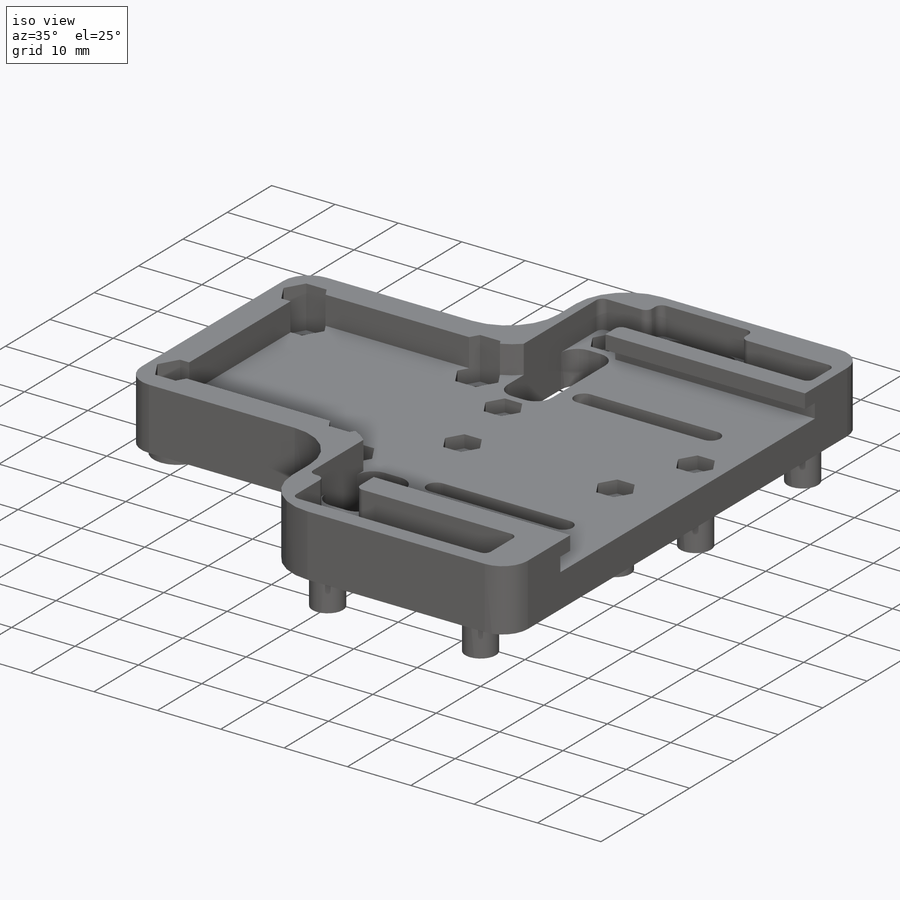
[diagram: iso view]
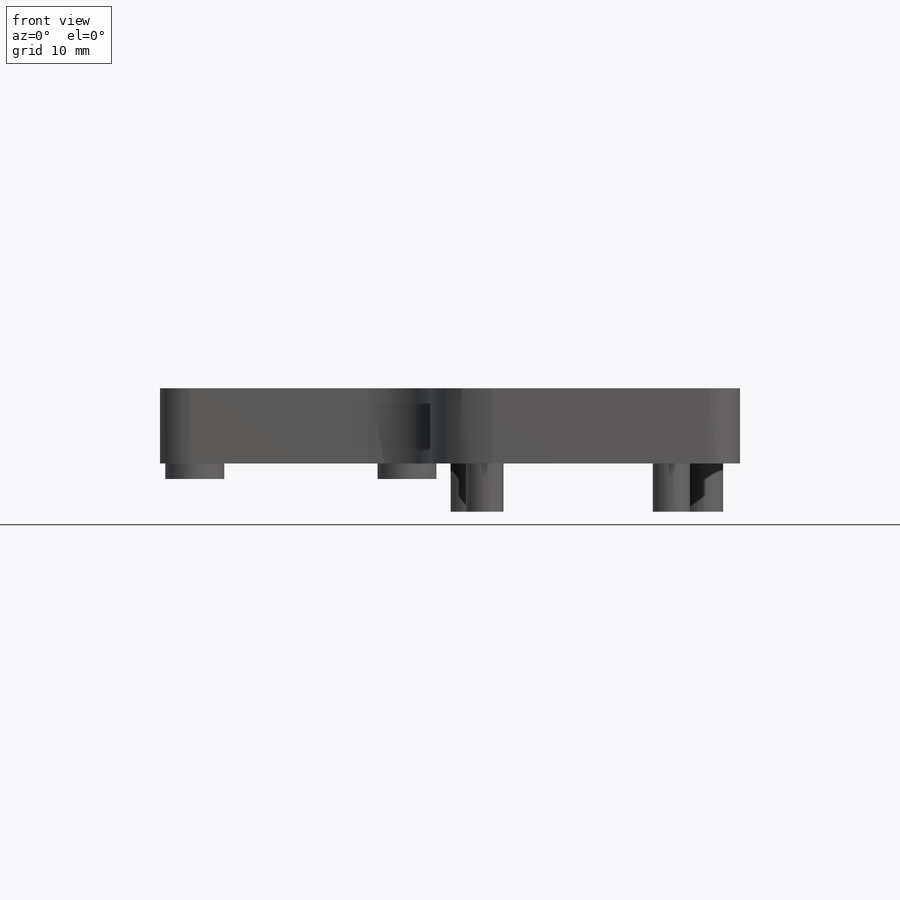
[diagram: front view]
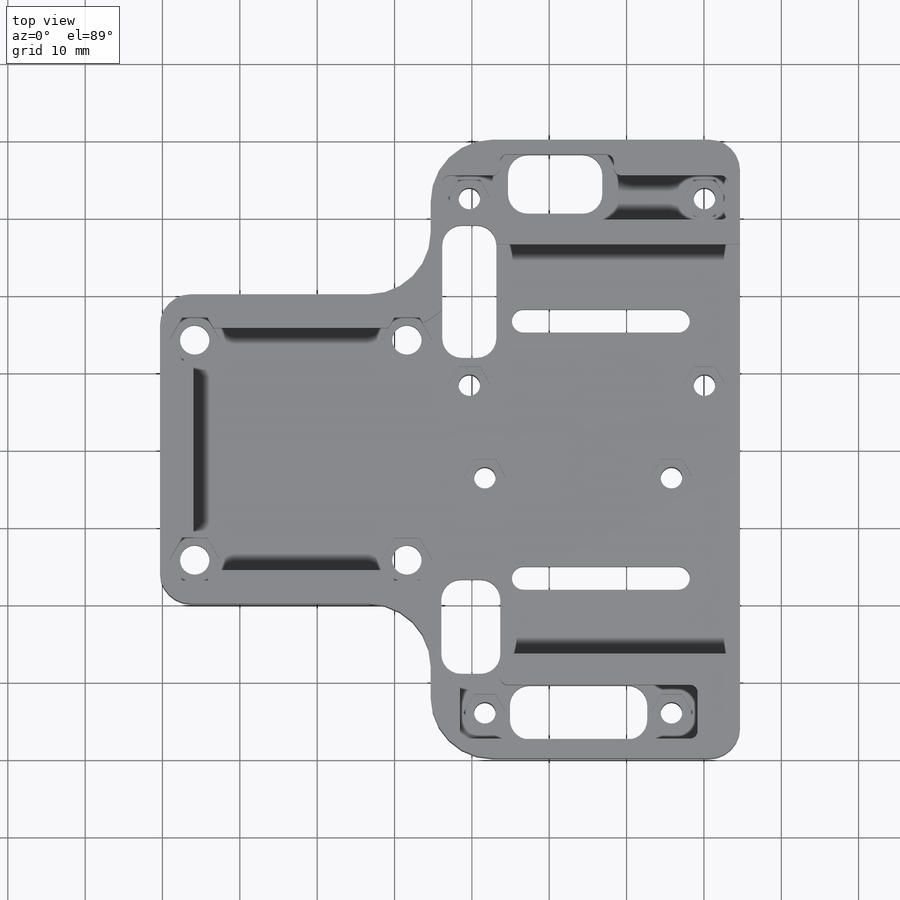
[diagram: top view]
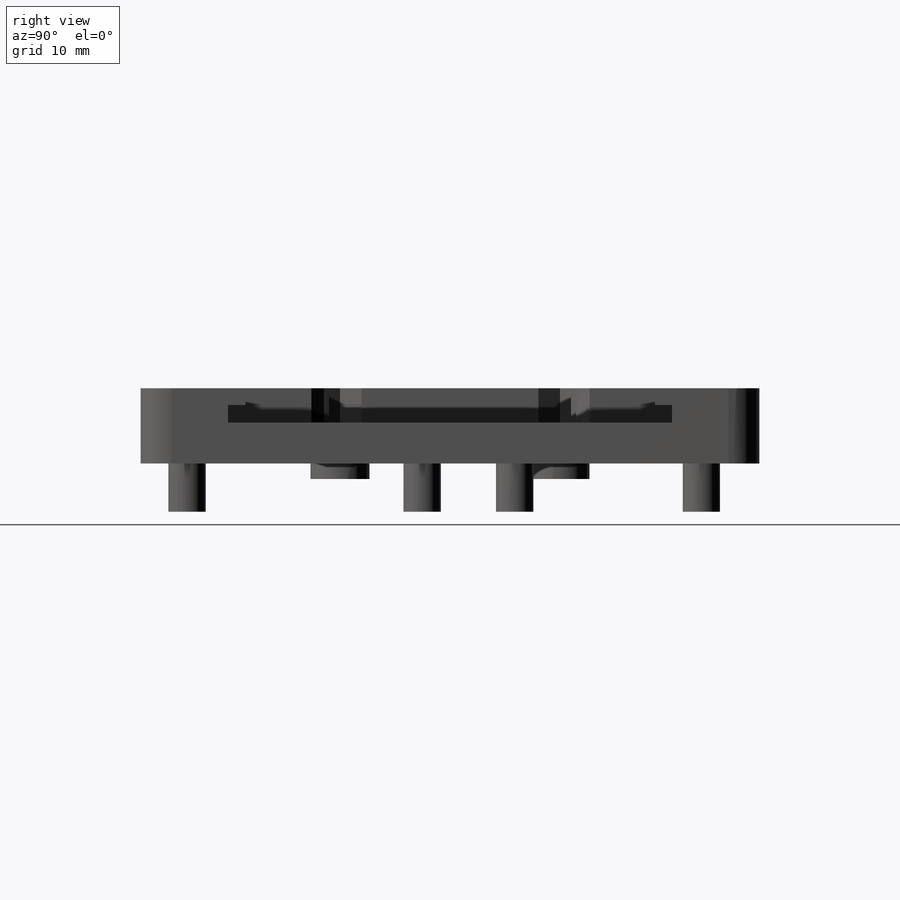
[diagram: right view]
SOLIDWORKS PART (.sldprt)
format: sldprt  version: not decoded by parser v0  size: 921,600 bytes
history: native  units: mm
features: sketch x21, cut_extrude x17, plane x5, extrude x4, pattern_linear x3, material x1 + 8 further entries (+13 scaffold rows collapsed)
feature tree (72):
  scaffold x13  (default folders/planes/origin — collapsed)
  material  "Material <not specified>"
  sketch  "Sketch1"  dims[c1.D5=8.0mm c1.D6=8.0mm c1.D7=4.0mm c1.D1=20.0mm c1.D2=40.0mm c1.D3=80.0mm c1.D4=40.0mm c2.D5=40.0mm c2.D6=35.0mm c2.D7=35.0mm c2.D1=40.0mm c2.D2=35.0mm c2.D3=40.0mm c2.D4=20.0mm c2.D8=0.0mm]
  extrude  "Boss-Extrude1"  Depth=9.74mm
  sketch  "Sketch2"  dims[c1.D6=8.0mm c1.D7=8.0mm c1.D8=~1.675935mm c1.D2=4.34mm c1.D1=4.34mm c1.D3=4.34mm c1.D4=52.94mm c1.D5=26.47mm c2.D1=4.34mm]
  cut_extrude  "Cut-Extrude1"  Depth=2.22mm
  sketch  "Sketch3"  dims[c1.D4=2.0mm c1.D2=2.0mm c1.D1=0.0mm c2.D2=0.0mm c2.D3=2.22mm c2.D4=2.22mm c3.D2=0.0mm c3.D3=2.22mm c4.D2=2.22mm c4.D5=2.22mm c4.D3=2.22mm c4.D4=2.22mm c5.D5=2.22mm c5.D1=0.0mm]
  cut_extrude  "Cut-Extrude3"  Depth=2.22mm
  sketch  "Sketch11"  dims[D5=1.5mm D6=1.5mm D1=20.0mm D2=33.25mm D3=16.625mm D4=8.0mm]
  cut_extrude  "Cut-Extrude8"  [1 undecoded]
  sketch  "Sketch4"  dims[D1=2.79mm D2=4.83mm D3=5.0mm D4=7.5mm]
  extrude  "Boss-Extrude2"  Depth=6.24mm
  "Axis2"
  plane  "Plane1"
  plane  "Plane2"
  "Axis3"
  "Axis4"
  sketch  "Sketch6"  dims[D1=0.0mm]
  cut_extrude  "Cut-Extrude4"  [1 undecoded]
  sketch  "Sketch7"  dims[D1=5.5mm]
  cut_extrude  "Cut-Extrude5"  Depth=6.44mm
  pattern_linear  "LPattern1"  Count1=2 Count2=2 Spacing1=24.13mm Spacing2=30.4mm
  sketch  "Sketch15"  dims[D1=2.79mm D2=2.79mm D3=2.79mm]
  cut_extrude  "Cut-Extrude12"  [1 undecoded]
  sketch  "Sketch13"  dims[D5=2.54mm D1=17.15mm D2=6.99mm D3=3.5mm D4=3.5mm]
  cut_extrude  "Cut-Extrude10"  [1 undecoded]
  sketch  "Sketch14"  dims[D5=2.54mm D1=7.62mm D2=12.19mm D3=5.0mm D4=2.0mm]
  cut_extrude  "Cut-Extrude11"  [1 undecoded]
  sketch  "Sketch8"  dims[D1=2.79mm D2=4.83mm D3=6.0mm D4=7.0mm]
  extrude  "Boss-Extrude3"  Depth=6.24mm
  "Axis5"
  plane  "Plane3"
  sketch  "Sketch9"  dims[D1=0.0mm]
  cut_extrude  "Cut-Extrude6"  [1 undecoded]
  sketch  "Sketch10"  dims[D1=5.5mm]
  cut_extrude  "Cut-Extrude7"  Depth=6.44mm
  "Axis6"
  pattern_linear  "LPattern3"  Count1=2 Count2=2 Spacing1=24.13mm Spacing2=30.4mm
  sketch  "Sketch12"  dims[D1=2.79mm D2=2.79mm D3=2.79mm]
  cut_extrude  "Cut-Extrude9"  [1 undecoded]
  sketch  "Sketch16"  dims[D5=2.54mm D1=17.75mm D2=6.99mm D3=3.5mm D4=3.25mm]
  cut_extrude  "Cut-Extrude13"  [1 undecoded]
  sketch  "Sketch17"  dims[D5=2.54mm D1=12.19mm D2=7.62mm D3=2.0mm D4=5.0mm]
  cut_extrude  "Cut-Extrude14"  [1 undecoded]
  sketch  "Sketch19"  dims[D1=3.81mm D2=7.62mm D3=14.225mm D4=4.5mm]
  extrude  "Boss-Extrude4"  Depth=2mm
  sketch  "Sketch20"
  cut_extrude  "Cut-Extrude15"  [1 undecoded]
  sketch  "Sketch21"  dims[D1=3.23mm]
  cut_extrude  "Cut-Extrude16"  Depth=6.66mm
  "Axis7"
  plane  "Plane4"
  plane  "Plane5"
  "Axis8"
  "Axis9"
  pattern_linear  "LPattern4"  Count1=2 Count2=2 Spacing1=28.45mm Spacing2=27.43mm
  sketch  "Sketch22"  dims[D5=1.0mm D1=3.2mm D2=30.7mm D3=1.2mm D4=1.2mm]
  cut_extrude  "Cut-Extrude17"  Depth=4.44mm
  sketch  "Sketch23"  dims[D1=1.0mm D7=1.0mm D2=0.4mm D3=0.5mm D4=0.5mm D5=0.5mm D6=0.3mm]
  cut_extrude  "Cut-Extrude18"  Depth=4.44mm
decode coverage: 34 of 45 modeling features carry decoded parameters; 8 rows unclassified (native names shown)
note: ~ marks probable driven/reference dimensions
note: 10 parameter values undecoded
summary: no parameter record found for 10 features
note: suppression state not decoded; provenance and decode notes live in map.json
